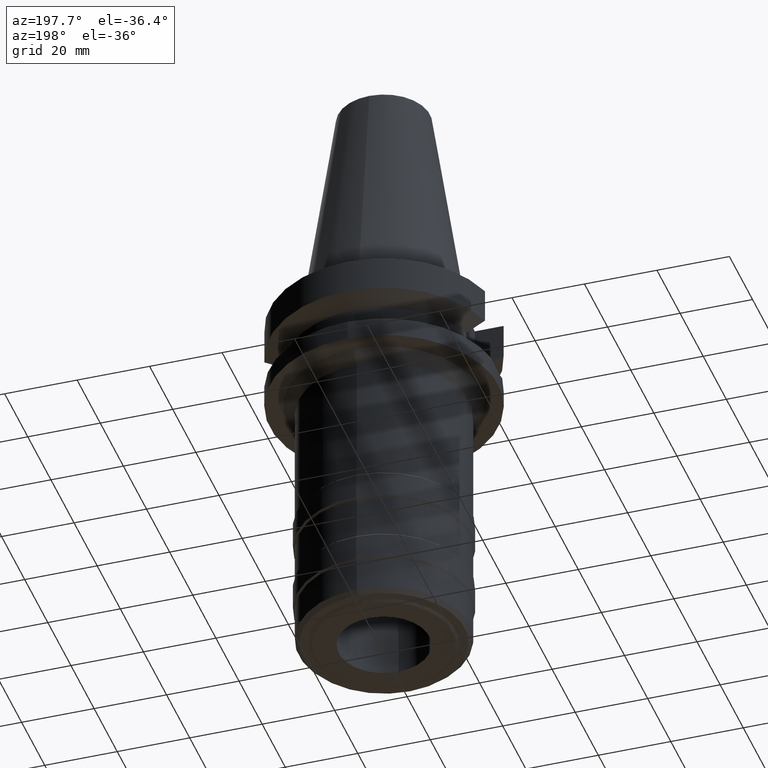
[diagram: clean part render]
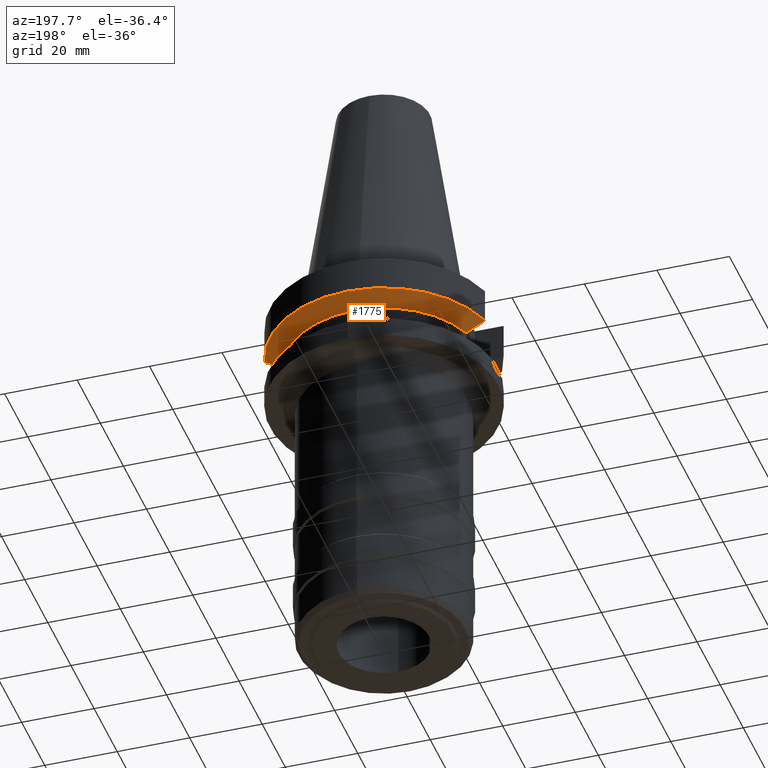
[diagram: same view with one face highlighted and labeled with its STEP entity id]
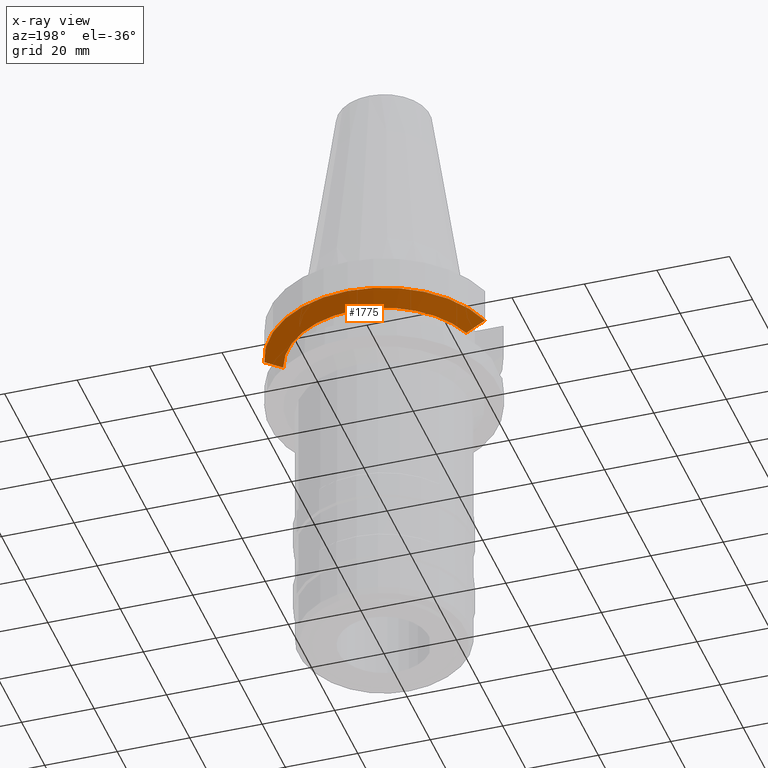
[diagram: x-ray of the same camera — body ghosted, the highlighted face saturated]
A machine part, auxiliary view. The second image highlights one B-rep face of the part: STEP entity #1775.
The next image is the same camera in x-ray: the body ghosted, the highlighted face saturated — about 0% of this face is hidden behind the body in this view.
In plain terms, the highlighted conical surface has half-angle 60 deg.
Its self-contained STEP definition (entity closure, byte-faithful):
#344=CARTESIAN_POINT('',(3.045402291376E1,8.049999277539E0,-1.156551215973E1));
#345=CARTESIAN_POINT('',(2.987645774495E1,8.049999277539E0,-1.188789690896E1));
#346=CARTESIAN_POINT('',(2.872091197121E1,8.049999725861E0,-1.253193846352E1));
#347=CARTESIAN_POINT('',(2.698538660664E1,8.050002043179E0,-1.349404333916E1));
#348=CARTESIAN_POINT('',(2.582730530606E1,8.049995415342E0,-1.413348341094E1));
#349=CARTESIAN_POINT('',(2.524772413135E1,8.049995415342E0,-1.445229203138E1));
#388=CARTESIAN_POINT('',(-2.524772216398E1,8.050001585741E0,-1.445224488215E1));
#389=CARTESIAN_POINT('',(-2.582727361919E1,8.050001585741E0,-1.413345268395E1));
#390=CARTESIAN_POINT('',(-2.698547392109E1,8.049999812540E0,-1.349419201073E1));
#391=CARTESIAN_POINT('',(-2.872100159559E1,8.049998277500E0,-1.253209177127E1));
#392=CARTESIAN_POINT('',(-2.987642830776E1,8.050004144141E0,-1.188786874556E1));
#393=CARTESIAN_POINT('',(-3.045402162735E1,8.050004144141E0,-1.156546832401E1));
#398=CARTESIAN_POINT('',(0.E0,1.065333950388E-14,-1.445225699861E1));
#399=DIRECTION('',(0.E0,0.E0,-1.E0));
#400=DIRECTION('',(-9.527442516822E-1,3.037735849057E-1,0.E0));
#401=AXIS2_PLACEMENT_3D('',#398,#399,#400);
#406=CARTESIAN_POINT('',(0.E0,1.065333950388E-14,-1.445225699861E1));
#407=DIRECTION('',(0.E0,0.E0,-1.E0));
#408=DIRECTION('',(0.E0,1.E0,0.E0));
#409=AXIS2_PLACEMENT_3D('',#406,#407,#408);
#414=CARTESIAN_POINT('',(0.E0,1.065333950388E-14,-1.156550565267E1));
#415=DIRECTION('',(0.E0,0.E0,1.E0));
#416=DIRECTION('',(9.667943721520E-1,2.555555555555E-1,0.E0));
#417=AXIS2_PLACEMENT_3D('',#414,#415,#416);
#422=CARTESIAN_POINT('',(0.E0,1.065333950388E-14,-1.156550565267E1));
#423=DIRECTION('',(0.E0,0.E0,1.E0));
#424=DIRECTION('',(0.E0,1.E0,0.E0));
#425=AXIS2_PLACEMENT_3D('',#422,#423,#424);
#1430=CARTESIAN_POINT('',(-2.524772216398E1,8.050001585741E0,
-1.445224488215E1));
#1431=VERTEX_POINT('',#1430);
#1432=CARTESIAN_POINT('',(2.524772413135E1,8.049995415342E0,-1.445229203138E1));
#1433=VERTEX_POINT('',#1432);
#1434=CARTESIAN_POINT('',(0.E0,2.65E1,-1.445225699861E1));
#1435=VERTEX_POINT('',#1434);
#1466=VERTEX_POINT('',#393);
#1471=VERTEX_POINT('',#344);
#1472=CARTESIAN_POINT('',(0.E0,3.15E1,-1.156550565267E1));
#1473=VERTEX_POINT('',#1472);
#1760=CARTESIAN_POINT('',(0.E0,1.065333950388E-14,-1.300888132564E1));
#1761=DIRECTION('',(0.E0,0.E0,1.E0));
#1762=DIRECTION('',(0.E0,1.E0,0.E0));
#1763=AXIS2_PLACEMENT_3D('',#1760,#1761,#1762);
#1764=CONICAL_SURFACE('',#1763,2.9E1,6.E1);
#1765=ORIENTED_EDGE('',*,*,#1749,.F.);
#1766=ORIENTED_EDGE('',*,*,#1738,.T.);
#1767=ORIENTED_EDGE('',*,*,#1736,.T.);
#1768=ORIENTED_EDGE('',*,*,#1715,.F.);
#1770=ORIENTED_EDGE('',*,*,#1769,.T.);
#1772=ORIENTED_EDGE('',*,*,#1771,.T.);
#1773=EDGE_LOOP('',(#1765,#1766,#1767,#1768,#1770,#1772));
#1774=FACE_OUTER_BOUND('',#1773,.F.);
#350=B_SPLINE_CURVE_WITH_KNOTS('',3,(#344,#345,#346,#347,#348,#349),
.UNSPECIFIED.,.F.,.F.,(4,1,1,4),(0.E0,3.333333333333E-1,6.666666666667E-1,1.E0),
.UNSPECIFIED.);
#394=B_SPLINE_CURVE_WITH_KNOTS('',3,(#388,#389,#390,#391,#392,#393),
.UNSPECIFIED.,.F.,.F.,(4,1,1,4),(0.E0,3.333333333333E-1,6.666666666667E-1,1.E0),
.UNSPECIFIED.);
#402=CIRCLE('',#401,2.65E1);
#410=CIRCLE('',#409,2.65E1);
#418=CIRCLE('',#417,3.15E1);
#426=CIRCLE('',#425,3.15E1);
#1715=EDGE_CURVE('',#1471,#1433,#350,.T.);
#1736=EDGE_CURVE('',#1435,#1433,#410,.T.);
#1738=EDGE_CURVE('',#1431,#1435,#402,.T.);
#1749=EDGE_CURVE('',#1431,#1466,#394,.T.);
#1769=EDGE_CURVE('',#1471,#1473,#418,.T.);
#1771=EDGE_CURVE('',#1473,#1466,#426,.T.);
#1775=ADVANCED_FACE('',(#1774),#1764,.T.);